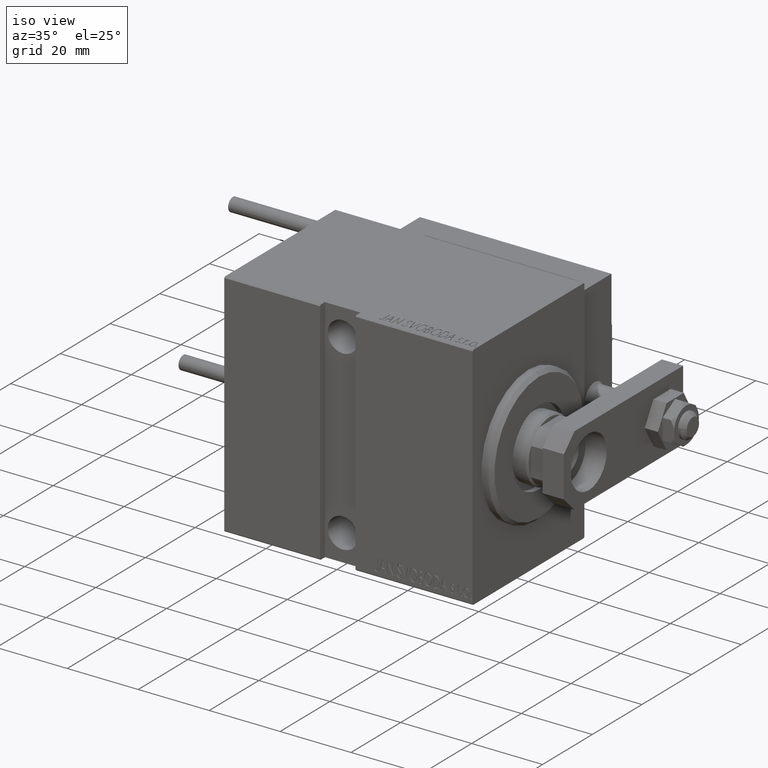
[diagram: clean part render]
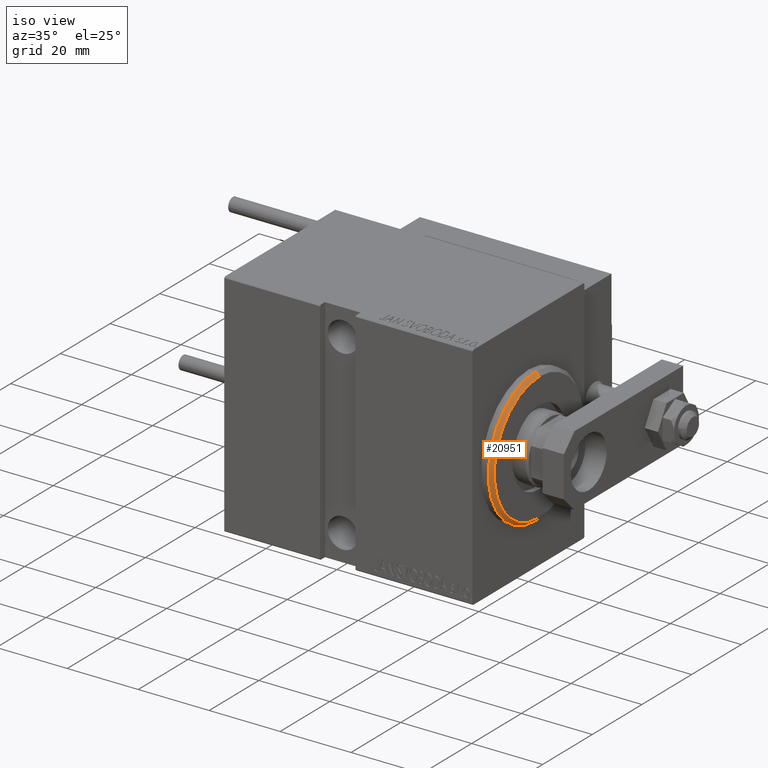
[diagram: same view with one face highlighted and labeled with its STEP entity id]
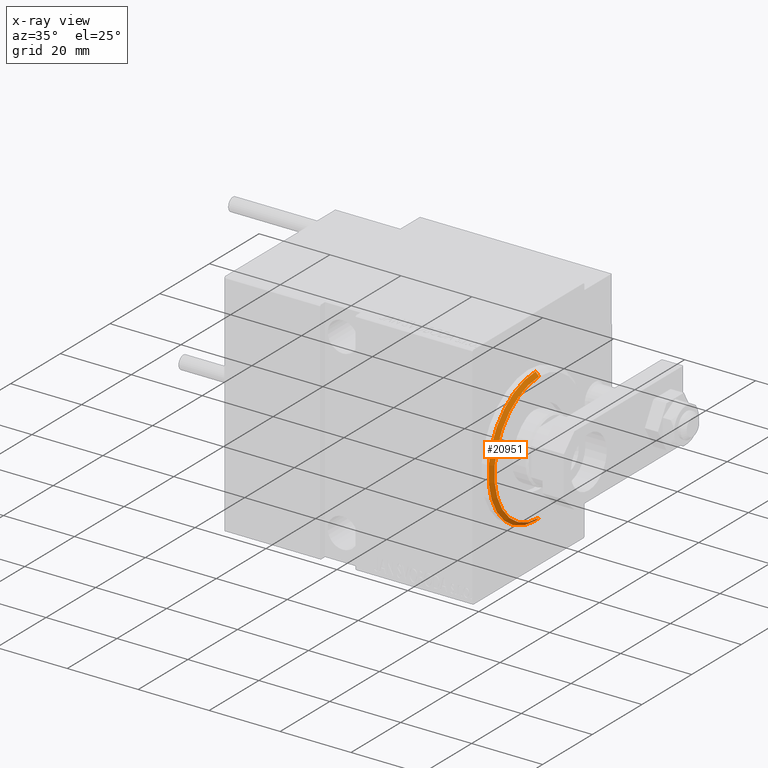
[diagram: x-ray of the same camera — body ghosted, the highlighted face saturated]
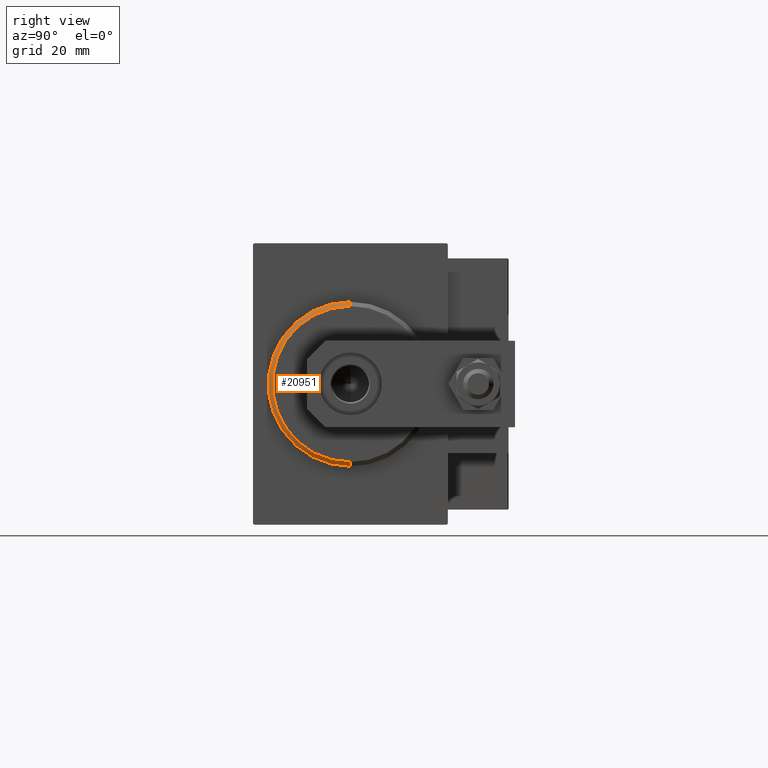
[diagram: same view with one face highlighted and labeled with its STEP entity id]
A machine part, iso view. The second image highlights one B-rep face of the part: STEP entity #20951.
The next image is the same camera in x-ray: the body ghosted, the highlighted face saturated — about 0% of this face is hidden behind the body in this view.
A second angle (right view) of the same face is appended — the face is thin or edge-on in the first view.
In plain terms, the highlighted conical surface has half-angle 45 deg.
Its self-contained STEP definition (entity closure, byte-faithful):
#1139 = EDGE_CURVE ( 'NONE', #38096, #32853, #47106, .T. ) ;
#1639 = LINE ( 'NONE', #8469, #38141 ) ;
#4496 = VERTEX_POINT ( 'NONE', #27644 ) ;
#6414 = DIRECTION ( 'NONE',  ( -1.000000000000000000, 0.000000000000000000, 0.000000000000000000 ) ) ;
#8469 = CARTESIAN_POINT ( 'NONE',  ( 3.000000000000000000, 0.000000000000000000, 17.99999999999999645 ) ) ;
#8734 = DIRECTION ( 'NONE',  ( 0.000000000000000000, 0.000000000000000000, 1.000000000000000000 ) ) ;
#9229 = CARTESIAN_POINT ( 'NONE',  ( 3.000000000000000000, 2.265596578422603002E-15, -17.99999999999999645 ) ) ;
#10599 = DIRECTION ( 'NONE',  ( 1.000000000000000000, -0.000000000000000000, 0.000000000000000000 ) ) ;
#13446 = ORIENTED_EDGE ( 'NONE', *, *, #22221, .F. ) ;
#14295 = CONICAL_SURFACE ( 'NONE', #48122, 17.99999999999999645, 0.7853981633974466137 ) ;
#15117 = VECTOR ( 'NONE', #34199, 1000.000000000000000 ) ;
#16507 = AXIS2_PLACEMENT_3D ( 'NONE', #44207, #10599, #26014 ) ;
#20951 = ADVANCED_FACE ( 'NONE', ( #43573 ), #14295, .T. ) ;
#22221 = EDGE_CURVE ( 'NONE', #32853, #37259, #30168, .T. ) ;
#23647 = DIRECTION ( 'NONE',  ( -1.000000000000000000, 0.000000000000000000, 0.000000000000000000 ) ) ;
#23871 = DIRECTION ( 'NONE',  ( -0.7071067811865487940, 0.000000000000000000, 0.7071067811865463515 ) ) ;
#25517 = ORIENTED_EDGE ( 'NONE', *, *, #1139, .F. ) ;
#26014 = DIRECTION ( 'NONE',  ( 0.000000000000000000, 0.000000000000000000, -1.000000000000000000 ) ) ;
#27600 = ORIENTED_EDGE ( 'NONE', *, *, #40393, .F. ) ;
#27644 = CARTESIAN_POINT ( 'NONE',  ( 1.999999999999992228, 0.000000000000000000, 19.00000000000000000 ) ) ;
#30168 = LINE ( 'NONE', #45543, #15117 ) ;
#30330 = CARTESIAN_POINT ( 'NONE',  ( 3.000000000000000000, 0.000000000000000000, 17.99999999999999645 ) ) ;
#32451 = CIRCLE ( 'NONE', #39697, 19.00000000000000000 ) ;
#32684 = CARTESIAN_POINT ( 'NONE',  ( 1.999999999999992228, 0.000000000000000000, 0.000000000000000000 ) ) ;
#32853 = VERTEX_POINT ( 'NONE', #9229 ) ;
#34199 = DIRECTION ( 'NONE',  ( -0.7071067811865487940, 8.659560562354918067E-17, -0.7071067811865463515 ) ) ;
#34660 = ORIENTED_EDGE ( 'NONE', *, *, #38019, .T. ) ;
#35103 = CARTESIAN_POINT ( 'NONE',  ( 1.999999999999992228, 2.326828918379970970E-15, -19.00000000000000000 ) ) ;
#35187 = EDGE_LOOP ( 'NONE', ( #13446, #25517, #34660, #27600 ) ) ;
#37259 = VERTEX_POINT ( 'NONE', #35103 ) ;
#38019 = EDGE_CURVE ( 'NONE', #38096, #4496, #1639, .T. ) ;
#38096 = VERTEX_POINT ( 'NONE', #30330 ) ;
#38141 = VECTOR ( 'NONE', #23871, 1000.000000000000000 ) ;
#39553 = CARTESIAN_POINT ( 'NONE',  ( 3.000000000000000000, 0.000000000000000000, 0.000000000000000000 ) ) ;
#39697 = AXIS2_PLACEMENT_3D ( 'NONE', #32684, #6414, #48060 ) ;
#40393 = EDGE_CURVE ( 'NONE', #37259, #4496, #32451, .T. ) ;
#43573 = FACE_OUTER_BOUND ( 'NONE', #35187, .T. ) ;
#44207 = CARTESIAN_POINT ( 'NONE',  ( 3.000000000000000000, 0.000000000000000000, 0.000000000000000000 ) ) ;
#45543 = CARTESIAN_POINT ( 'NONE',  ( 3.000000000000000000, 2.204364238465235033E-15, -17.99999999999999645 ) ) ;
#47106 = CIRCLE ( 'NONE', #16507, 17.99999999999999645 ) ;
#48060 = DIRECTION ( 'NONE',  ( 0.000000000000000000, 0.000000000000000000, -1.000000000000000000 ) ) ;
#48122 = AXIS2_PLACEMENT_3D ( 'NONE', #39553, #23647, #8734 ) ;